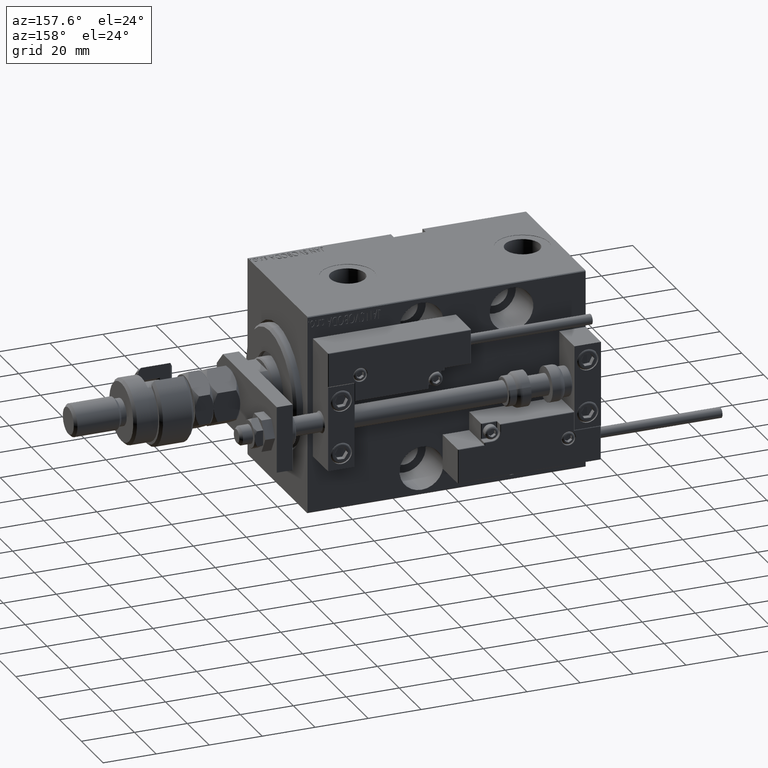
[diagram: clean part render]
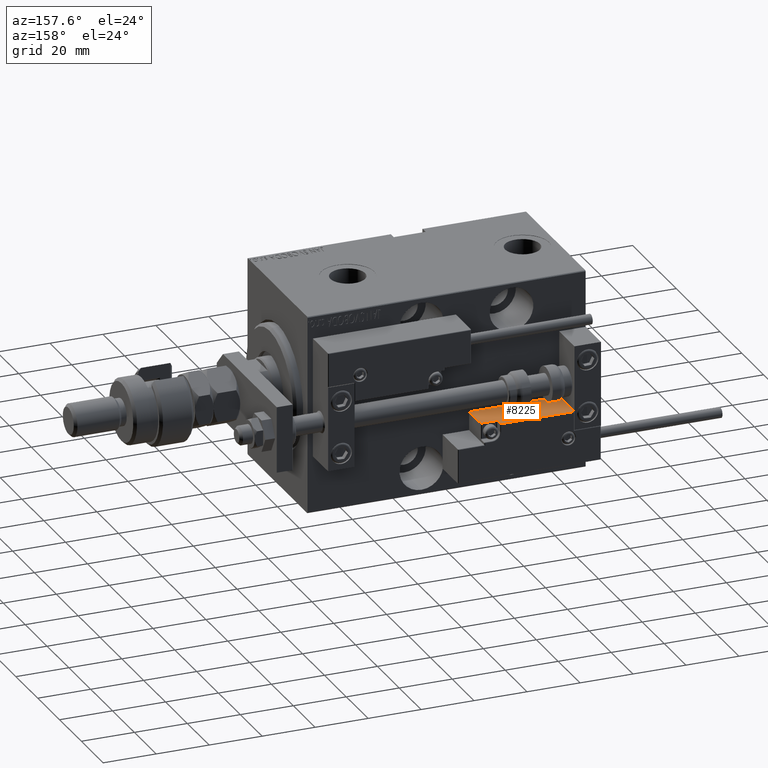
[diagram: same view with one face highlighted and labeled with its STEP entity id]
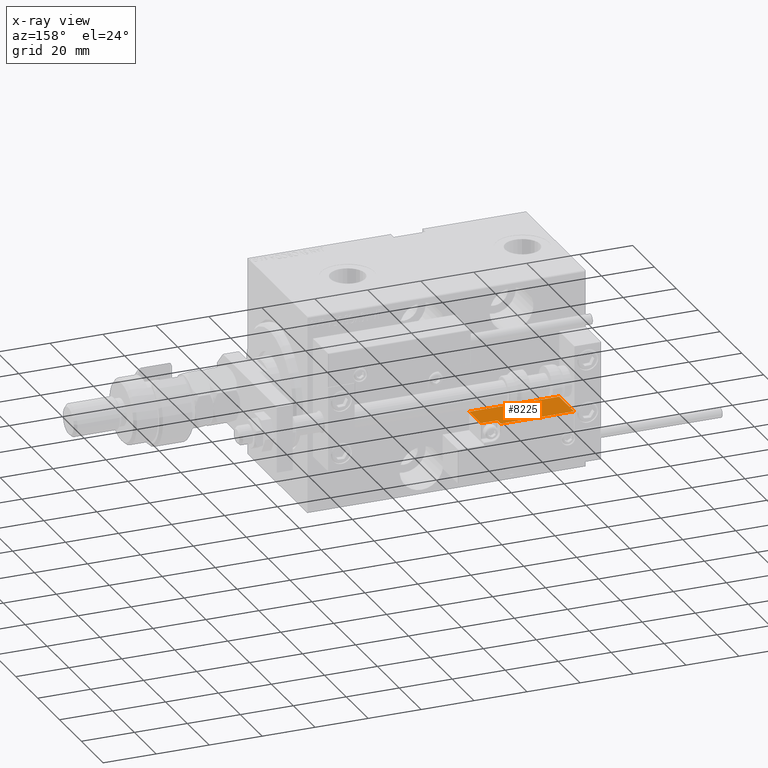
[diagram: x-ray of the same camera — body ghosted, the highlighted face saturated]
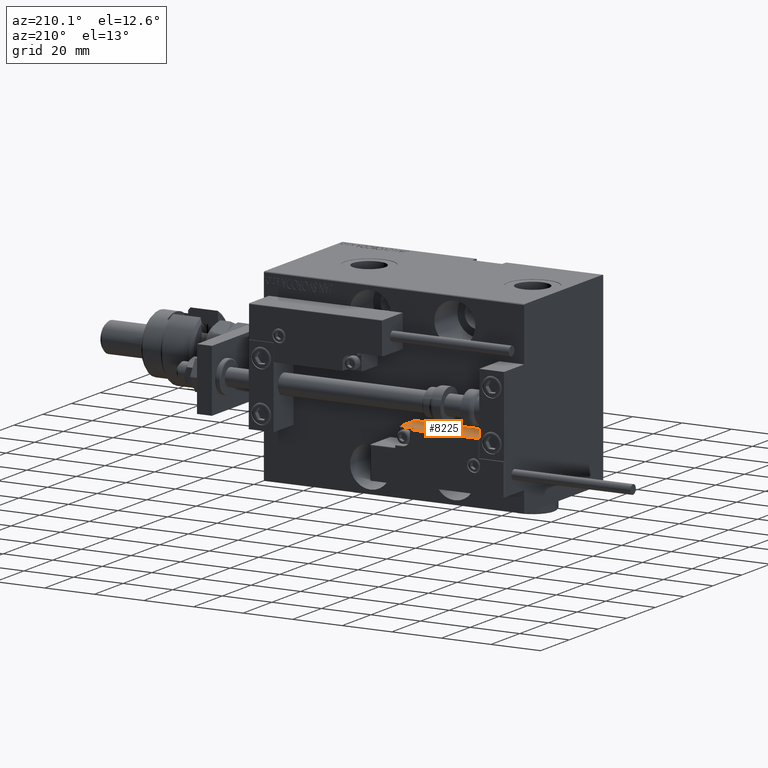
[diagram: same view with one face highlighted and labeled with its STEP entity id]
A machine part, auxiliary view. The second image highlights one B-rep face of the part: STEP entity #8225.
The next image is the same camera in x-ray: the body ghosted, the highlighted face saturated — about 0% of this face is hidden behind the body in this view.
A second angle (auxiliary view) of the same face is appended — the face is thin or edge-on in the first view.
In plain terms, the highlighted planar face has unit normal (0, 0, -1).
Its self-contained STEP definition (entity closure, byte-faithful):
#126 = EDGE_CURVE ( 'NONE', #672, #31076, #17014, .T. ) ;
#206 = VECTOR ( 'NONE', #23875, 1000.000000000000000 ) ;
#672 = VERTEX_POINT ( 'NONE', #46882 ) ;
#810 = EDGE_LOOP ( 'NONE', ( #18366, #27665, #13915, #53871, #32171, #18617, #53064 ) ) ;
#1445 = LINE ( 'NONE', #50940, #18827 ) ;
#1989 = CARTESIAN_POINT ( 'NONE',  ( -16.99999999999999289, 3.252606517456513302E-15, 13.70000000000000107 ) ) ;
#3494 = EDGE_CURVE ( 'NONE', #4551, #36605, #1445, .T. ) ;
#4117 = VECTOR ( 'NONE', #14257, 1000.000000000000000 ) ;
#4551 = VERTEX_POINT ( 'NONE', #37974 ) ;
#8193 = CIRCLE ( 'NONE', #10822, 0.5999999999999998668 ) ;
#8225 = ADVANCED_FACE ( 'NONE', ( #10790 ), #23118, .F. ) ;
#9107 = VECTOR ( 'NONE', #14879, 1000.000000000000000 ) ;
#9876 = LINE ( 'NONE', #51718, #4117 ) ;
#10790 = FACE_OUTER_BOUND ( 'NONE', #810, .T. ) ;
#10822 = AXIS2_PLACEMENT_3D ( 'NONE', #15126, #43599, #52326 ) ;
#11138 = EDGE_CURVE ( 'NONE', #48854, #31076, #32078, .T. ) ;
#11329 = DIRECTION ( 'NONE',  ( 0.000000000000000000, 1.000000000000000000, 0.000000000000000000 ) ) ;
#12327 = CARTESIAN_POINT ( 'NONE',  ( 11.29999999999999893, 3.252606517456513302E-15, 10.69999999999999929 ) ) ;
#13915 = ORIENTED_EDGE ( 'NONE', *, *, #47451, .F. ) ;
#14257 = DIRECTION ( 'NONE',  ( -0.000000000000000000, -0.000000000000000000, -1.000000000000000000 ) ) ;
#14879 = DIRECTION ( 'NONE',  ( 0.000000000000000000, -0.000000000000000000, 1.000000000000000000 ) ) ;
#15126 = CARTESIAN_POINT ( 'NONE',  ( 11.29999999999999893, 3.252606517456513302E-15, 11.29999999999999893 ) ) ;
#17014 = LINE ( 'NONE', #26497, #27408 ) ;
#18366 = ORIENTED_EDGE ( 'NONE', *, *, #126, .F. ) ;
#18617 = ORIENTED_EDGE ( 'NONE', *, *, #29880, .T. ) ;
#18827 = VECTOR ( 'NONE', #47119, 1000.000000000000000 ) ;
#19566 = CARTESIAN_POINT ( 'NONE',  ( 16.99999999999999289, 3.252606517456513302E-15, 0.000000000000000000 ) ) ;
#23082 = LINE ( 'NONE', #35683, #9107 ) ;
#23118 = PLANE ( 'NONE',  #37714 ) ;
#23425 = CARTESIAN_POINT ( 'NONE',  ( -16.99999999999999289, 3.252606517456513302E-15, 0.000000000000000000 ) ) ;
#23875 = DIRECTION ( 'NONE',  ( 1.000000000000000000, 0.000000000000000000, 0.000000000000000000 ) ) ;
#24298 = EDGE_CURVE ( 'NONE', #49651, #4551, #23082, .T. ) ;
#26497 = CARTESIAN_POINT ( 'NONE',  ( 16.99999999999999289, 3.252606517456513302E-15, 14.00000000000000000 ) ) ;
#27408 = VECTOR ( 'NONE', #33705, 1000.000000000000000 ) ;
#27665 = ORIENTED_EDGE ( 'NONE', *, *, #33609, .T. ) ;
#28027 = CARTESIAN_POINT ( 'NONE',  ( 11.00000000000000000, 3.252606517456513302E-15, 10.69999999999999929 ) ) ;
#29880 = EDGE_CURVE ( 'NONE', #36605, #48854, #9876, .T. ) ;
#30267 = CARTESIAN_POINT ( 'NONE',  ( 10.70000000000000107, 3.252606517456513302E-15, 11.29999999999999893 ) ) ;
#31076 = VERTEX_POINT ( 'NONE', #19566 ) ;
#32078 = LINE ( 'NONE', #36468, #206 ) ;
#32171 = ORIENTED_EDGE ( 'NONE', *, *, #3494, .T. ) ;
#33609 = EDGE_CURVE ( 'NONE', #672, #45818, #53177, .T. ) ;
#33705 = DIRECTION ( 'NONE',  ( -0.000000000000000000, -0.000000000000000000, -1.000000000000000000 ) ) ;
#35683 = CARTESIAN_POINT ( 'NONE',  ( 10.70000000000000107, 3.252606517456513302E-15, 14.00000000000000000 ) ) ;
#36468 = CARTESIAN_POINT ( 'NONE',  ( -16.99999999999999289, 3.252606517456513302E-15, 0.000000000000000000 ) ) ;
#36605 = VERTEX_POINT ( 'NONE', #1989 ) ;
#37714 = AXIS2_PLACEMENT_3D ( 'NONE', #48528, #11329, #39789 ) ;
#37974 = CARTESIAN_POINT ( 'NONE',  ( 10.70000000000000107, 3.252606517456513302E-15, 13.70000000000000107 ) ) ;
#39789 = DIRECTION ( 'NONE',  ( 0.000000000000000000, -0.000000000000000000, 1.000000000000000000 ) ) ;
#42579 = VECTOR ( 'NONE', #45515, 1000.000000000000000 ) ;
#43599 = DIRECTION ( 'NONE',  ( -0.000000000000000000, -1.000000000000000000, -0.000000000000000000 ) ) ;
#45515 = DIRECTION ( 'NONE',  ( -1.000000000000000000, 0.000000000000000000, -0.000000000000000000 ) ) ;
#45818 = VERTEX_POINT ( 'NONE', #12327 ) ;
#46882 = CARTESIAN_POINT ( 'NONE',  ( 16.99999999999999289, 3.252606517456513302E-15, 10.69999999999999929 ) ) ;
#47119 = DIRECTION ( 'NONE',  ( -1.000000000000000000, 0.000000000000000000, -0.000000000000000000 ) ) ;
#47451 = EDGE_CURVE ( 'NONE', #49651, #45818, #8193, .T. ) ;
#48528 = CARTESIAN_POINT ( 'NONE',  ( -16.99999999999999289, 3.252606517456513302E-15, 14.00000000000000000 ) ) ;
#48854 = VERTEX_POINT ( 'NONE', #23425 ) ;
#49651 = VERTEX_POINT ( 'NONE', #30267 ) ;
#50940 = CARTESIAN_POINT ( 'NONE',  ( -16.99999999999999289, 3.252606517456513302E-15, 13.70000000000000107 ) ) ;
#51718 = CARTESIAN_POINT ( 'NONE',  ( -16.99999999999999289, 3.252606517456513302E-15, 14.00000000000000000 ) ) ;
#52326 = DIRECTION ( 'NONE',  ( 0.000000000000000000, 0.000000000000000000, 1.000000000000000000 ) ) ;
#53064 = ORIENTED_EDGE ( 'NONE', *, *, #11138, .T. ) ;
#53177 = LINE ( 'NONE', #28027, #42579 ) ;
#53871 = ORIENTED_EDGE ( 'NONE', *, *, #24298, .T. ) ;